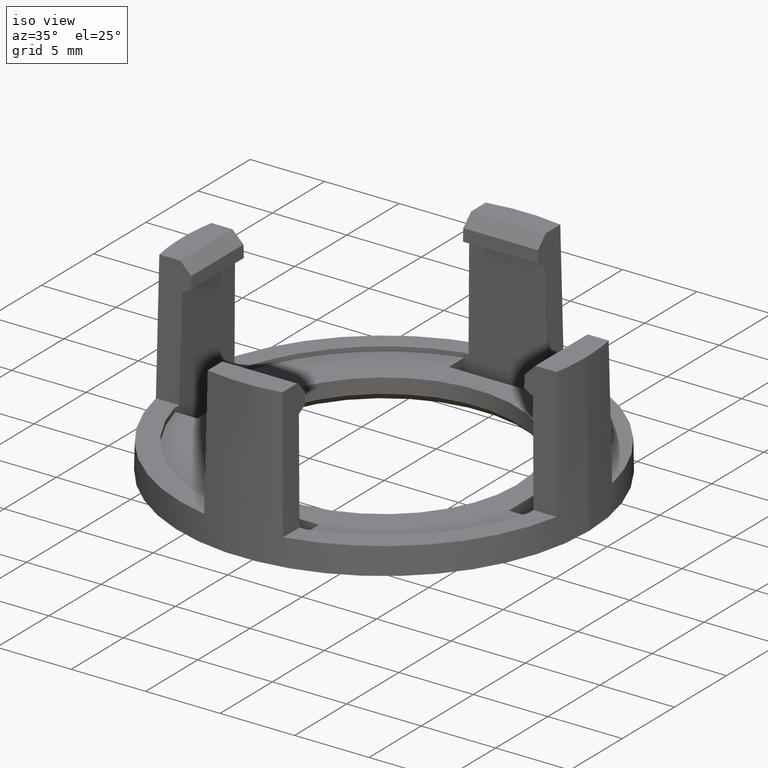
[diagram: clean part render]
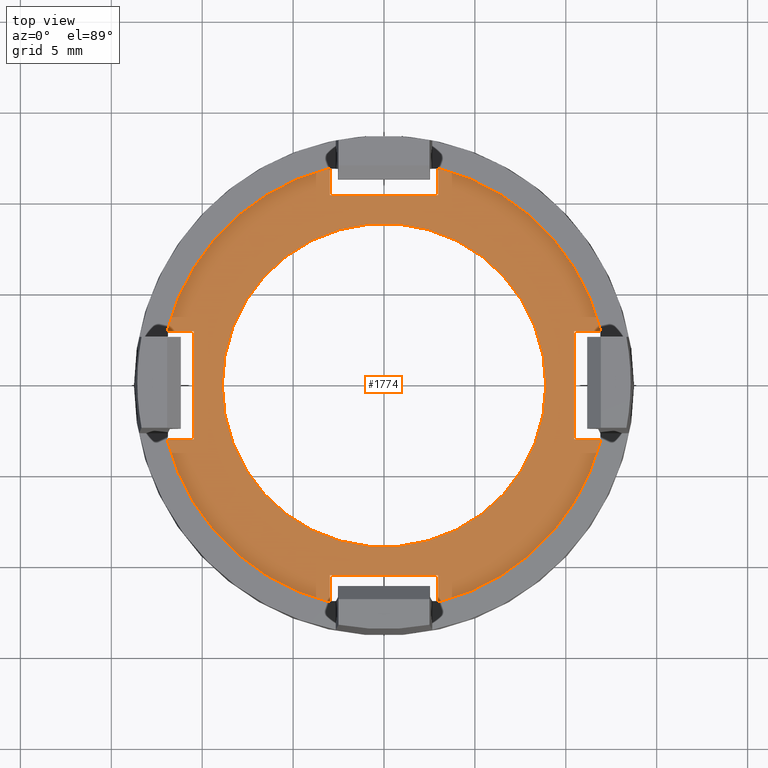
[diagram: tour spotlight — one face highlighted and labeled with its STEP entity id]
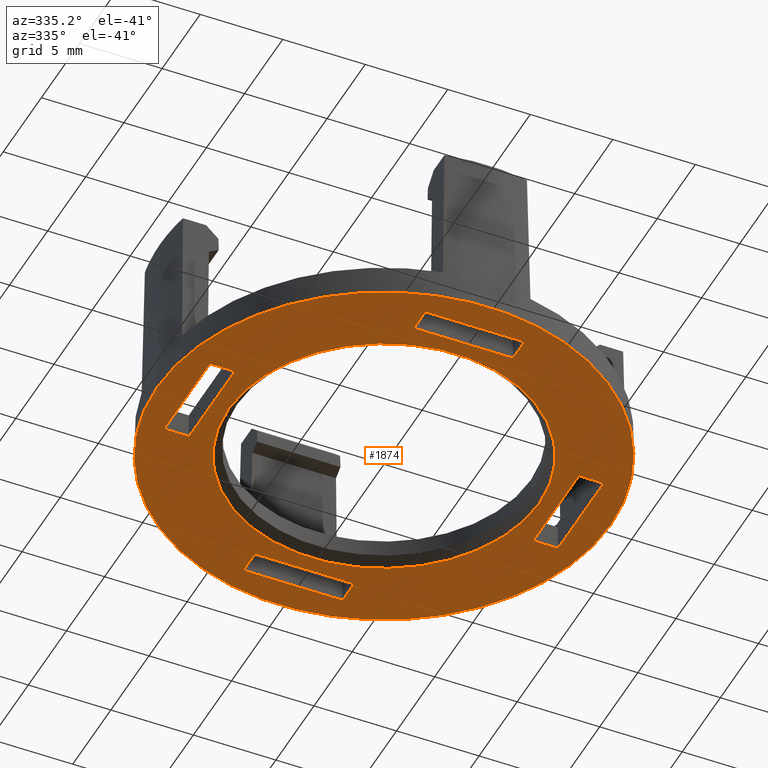
[diagram: tour spotlight — one face highlighted and labeled with its STEP entity id]
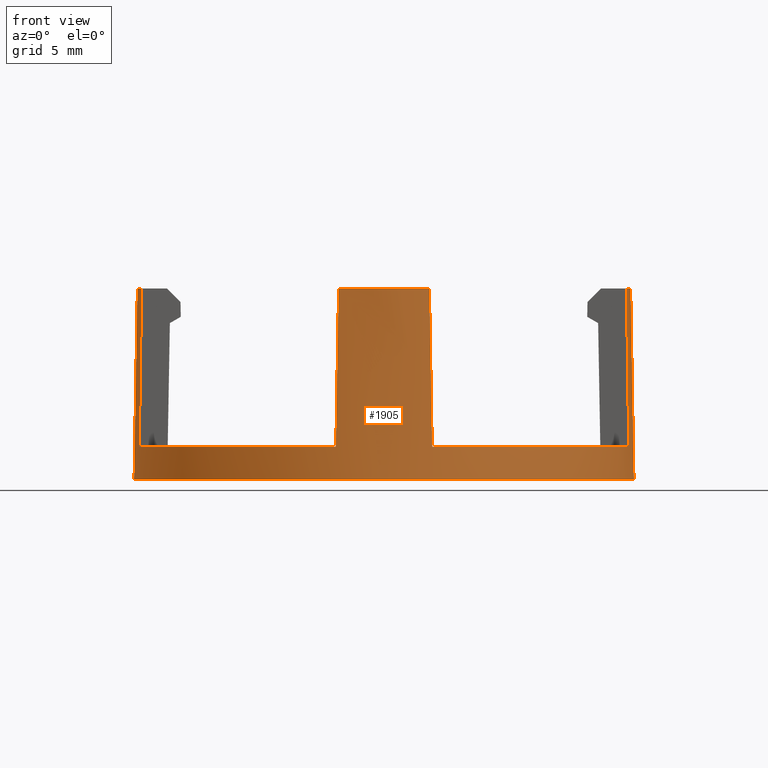
[diagram: tour spotlight — one face highlighted and labeled with its STEP entity id]
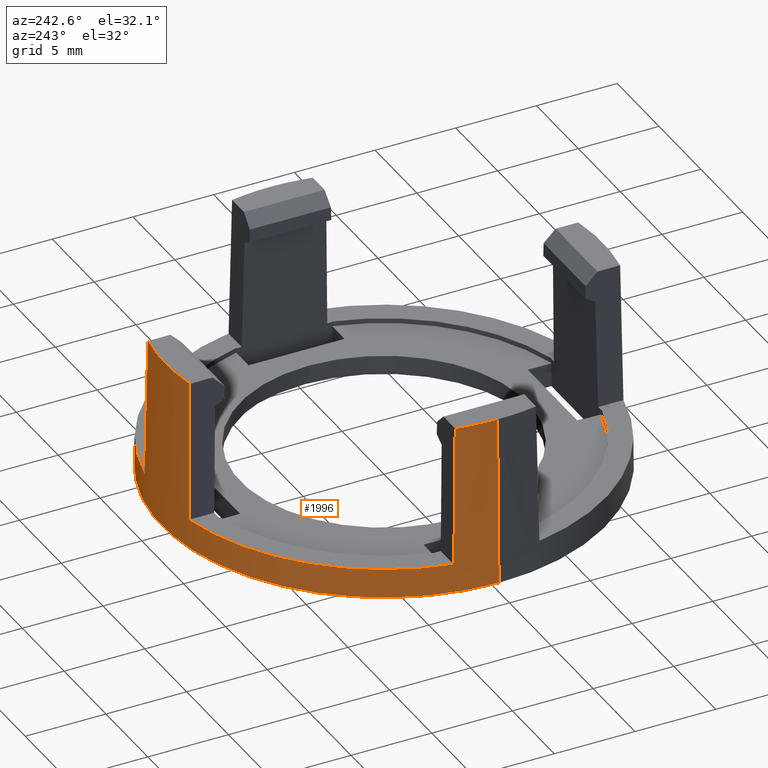
[diagram: tour spotlight — one face highlighted and labeled with its STEP entity id]
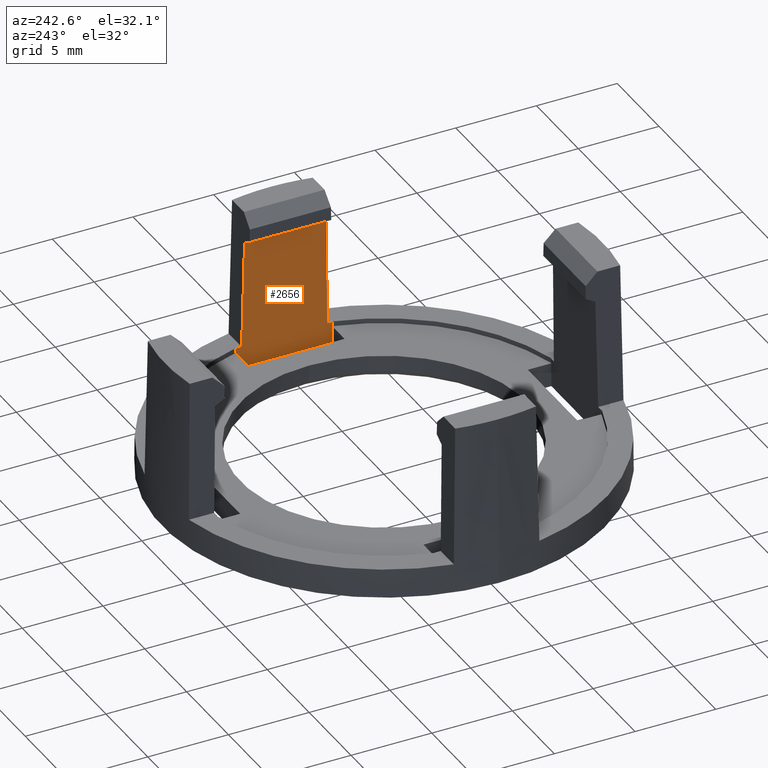
[diagram: tour spotlight — one face highlighted and labeled with its STEP entity id]
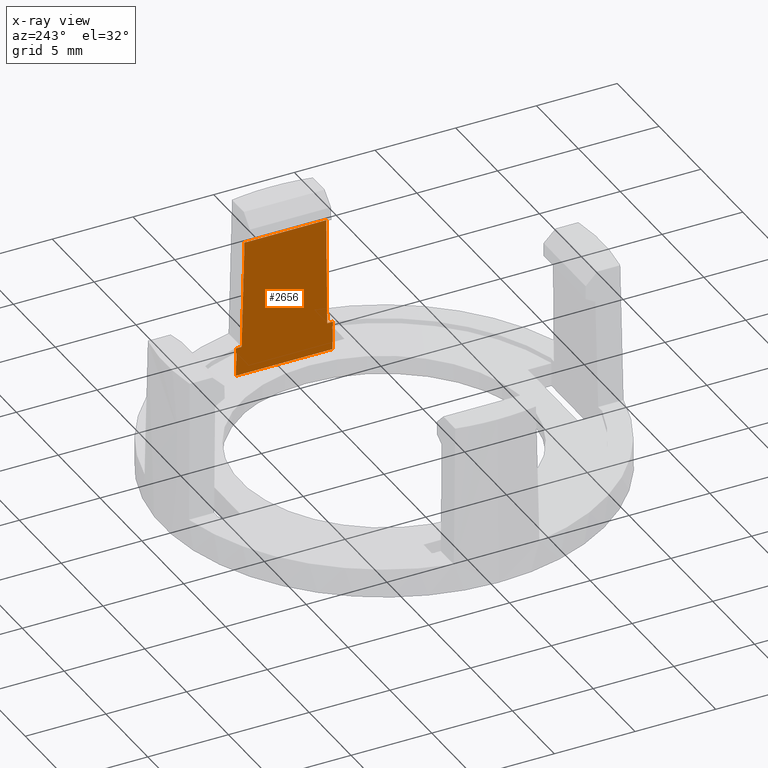
[diagram: x-ray of the same camera — body ghosted, this tour face saturated]
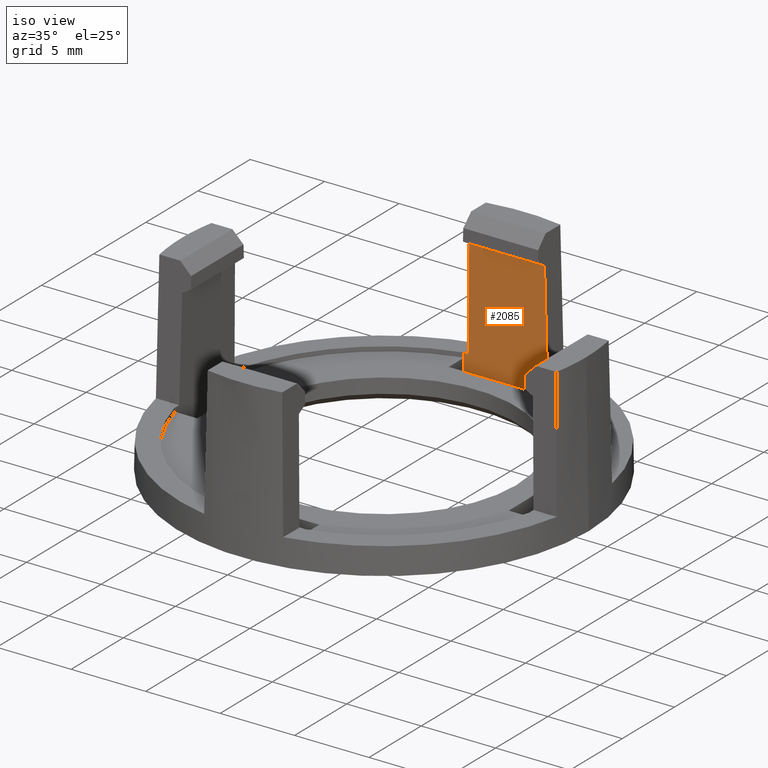
[diagram: tour spotlight — one face highlighted and labeled with its STEP entity id]
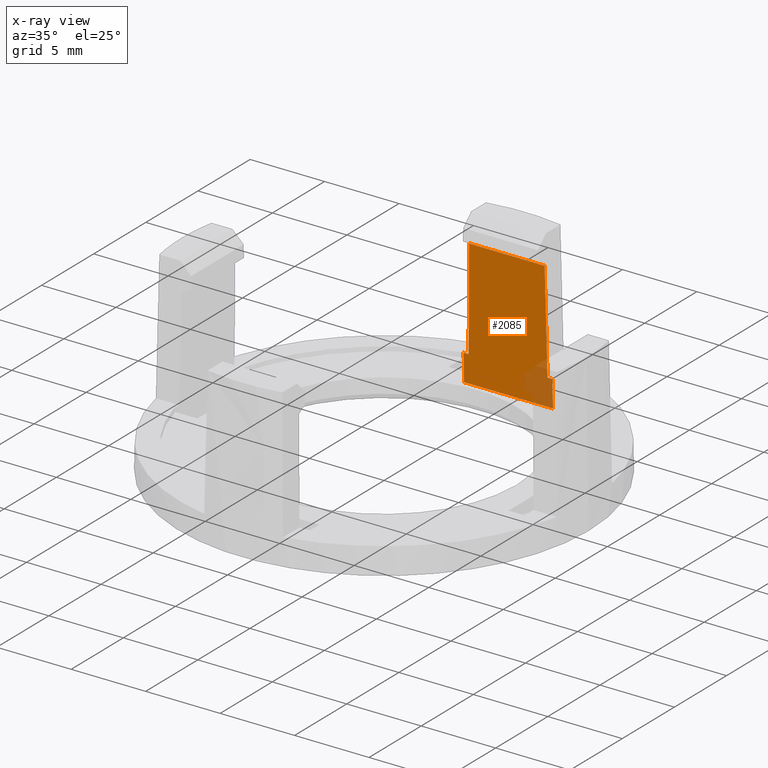
[diagram: x-ray of the same camera — body ghosted, this tour face saturated]
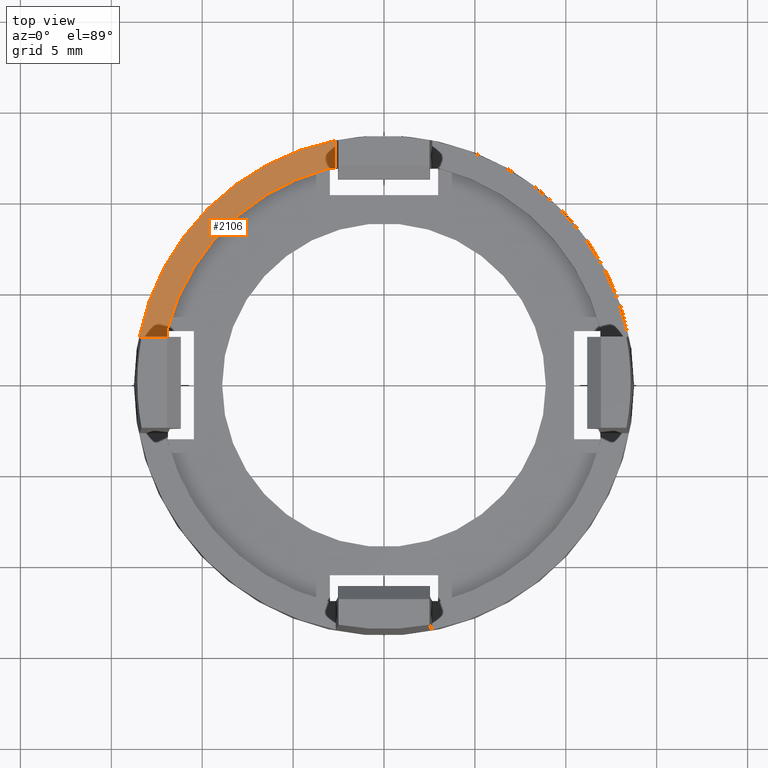
[diagram: tour spotlight — one face highlighted and labeled with its STEP entity id]
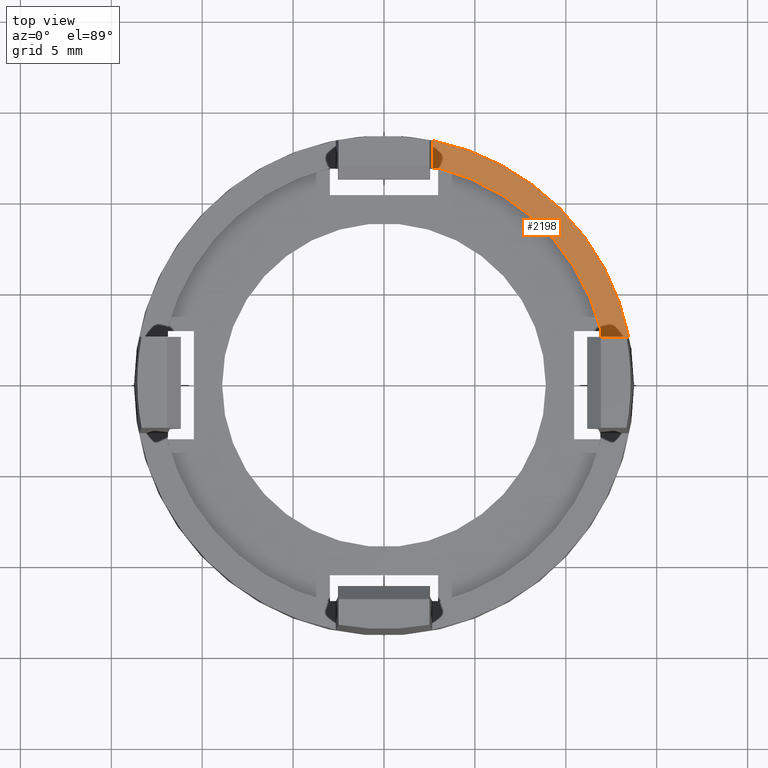
[diagram: tour spotlight — one face highlighted and labeled with its STEP entity id]
A machine part: a face-by-face anatomy tour. The part has 64 B-rep faces; the first image is the clean iso view, then the 8 largest visible faces are spotlighted one at a time (largest first), each with its STEP entity span.

Face 1 — top view, entity #1774. In plain terms, the highlighted planar face has unit normal (0, 0, 1).
Definition (entity closure, byte-faithful):
#15=CARTESIAN_POINT('',(0.E0,0.E0,2.842170943040E-13));
#16=DIRECTION('',(0.E0,0.E0,1.E0));
#17=DIRECTION('',(1.E0,0.E0,0.E0));
#18=AXIS2_PLACEMENT_3D('',#15,#16,#17);
#24=CARTESIAN_POINT('',(0.E0,0.E0,2.842170943040E-13));
#25=DIRECTION('',(0.E0,0.E0,1.E0));
#26=DIRECTION('',(-1.E0,0.E0,0.E0));
#27=AXIS2_PLACEMENT_3D('',#24,#25,#26);
#32=DIRECTION('',(1.696123586196E-14,1.E0,0.E0));
#33=VECTOR('',#32,2.618259739233E-2);
#34=CARTESIAN_POINT('',(3.E0,-1.192853721124E1,0.E0));
#35=LINE('',#34,#33);
#39=DIRECTION('',(0.E0,1.E0,0.E0));
#40=VECTOR('',#39,1.447634805215E0);
#41=CARTESIAN_POINT('',(2.973817402608E0,-1.190235461385E1,0.E0));
#42=LINE('',#41,#40);
#46=DIRECTION('',(-1.E0,0.E0,0.E0));
#47=VECTOR('',#46,5.947634805215E0);
#48=CARTESIAN_POINT('',(2.973817402608E0,-1.045471980863E1,0.E0));
#49=LINE('',#48,#47);
#53=DIRECTION('',(0.E0,1.E0,0.E0));
#54=VECTOR('',#53,1.447634805215E0);
#55=CARTESIAN_POINT('',(-2.973817402608E0,-1.190235461385E1,0.E0));
#56=LINE('',#55,#54);
#60=DIRECTION('',(6.784494344785E-14,1.E0,0.E0));
#61=VECTOR('',#60,2.618259739233E-2);
#62=CARTESIAN_POINT('',(-3.E0,-1.192853721124E1,0.E0));
#63=LINE('',#62,#61);
#67=DIRECTION('',(1.E0,-5.088370758588E-14,-2.814626175668E-14));
#68=VECTOR('',#67,2.618259739233E-2);
#69=CARTESIAN_POINT('',(-1.192853721124E1,-3.E0,0.E0));
#70=LINE('',#69,#68);
#74=DIRECTION('',(1.E0,0.E0,0.E0));
#75=VECTOR('',#74,1.447634805215E0);
#76=CARTESIAN_POINT('',(-1.190235461385E1,-2.973817402608E0,0.E0));
#77=LINE('',#76,#75);
#81=DIRECTION('',(0.E0,1.E0,0.E0));
#82=VECTOR('',#81,5.947634805215E0);
#83=CARTESIAN_POINT('',(-1.045471980863E1,-2.973817402608E0,0.E0));
#84=LINE('',#83,#82);
#88=DIRECTION('',(1.E0,0.E0,0.E0));
#89=VECTOR('',#88,1.447634805215E0);
#90=CARTESIAN_POINT('',(-1.190235461385E1,2.973817402608E0,0.E0));
#91=LINE('',#90,#89);
#95=DIRECTION('',(1.E0,-6.784494344785E-14,-2.814626175669E-14));
#96=VECTOR('',#95,2.618259739233E-2);
#97=CARTESIAN_POINT('',(-1.192853721124E1,3.E0,0.E0));
#98=LINE('',#97,#96);
#102=DIRECTION('',(-5.088370758588E-14,-1.E0,0.E0));
#103=VECTOR('',#102,2.618259739233E-2);
#104=CARTESIAN_POINT('',(-3.E0,1.192853721124E1,0.E0));
#105=LINE('',#104,#103);
#109=DIRECTION('',(0.E0,-1.E0,0.E0));
#110=VECTOR('',#109,1.447634805215E0);
#111=CARTESIAN_POINT('',(-2.973817402608E0,1.190235461385E1,0.E0));
#112=LINE('',#111,#110);
#116=DIRECTION('',(1.E0,0.E0,0.E0));
#117=VECTOR('',#116,5.947634805215E0);
#118=CARTESIAN_POINT('',(-2.973817402608E0,1.045471980863E1,0.E0));
#119=LINE('',#118,#117);
#123=DIRECTION('',(0.E0,-1.E0,0.E0));
#124=VECTOR('',#123,1.447634805215E0);
#125=CARTESIAN_POINT('',(2.973817402608E0,1.190235461385E1,0.E0));
#126=LINE('',#125,#124);
#130=DIRECTION('',(-6.784494344785E-14,-1.E0,0.E0));
#131=VECTOR('',#130,2.618259739233E-2);
#132=CARTESIAN_POINT('',(3.E0,1.192853721124E1,0.E0));
#133=LINE('',#132,#131);
#137=DIRECTION('',(-1.E0,-1.017674151718E-13,2.531938911303E-14));
#138=VECTOR('',#137,2.618259739233E-2);
#139=CARTESIAN_POINT('',(1.192853721124E1,3.E0,0.E0));
#140=LINE('',#139,#138);
#144=DIRECTION('',(-1.E0,0.E0,0.E0));
#145=VECTOR('',#144,1.447634805215E0);
#146=CARTESIAN_POINT('',(1.190235461385E1,2.973817402608E0,0.E0));
#147=LINE('',#146,#145);
#151=DIRECTION('',(0.E0,-1.E0,0.E0));
#152=VECTOR('',#151,5.947634805215E0);
#153=CARTESIAN_POINT('',(1.045471980863E1,2.973817402608E0,0.E0));
#154=LINE('',#153,#152);
#158=DIRECTION('',(-1.E0,0.E0,0.E0));
#159=VECTOR('',#158,1.447634805215E0);
#160=CARTESIAN_POINT('',(1.190235461385E1,-2.973817402608E0,0.E0));
#161=LINE('',#160,#159);
#165=DIRECTION('',(-1.E0,-5.088370758588E-14,2.531938911302E-14));
#166=VECTOR('',#165,2.618259739233E-2);
#167=CARTESIAN_POINT('',(1.192853721124E1,-3.E0,0.E0));
#168=LINE('',#167,#166);
#701=DIRECTION('',(-1.E0,0.E0,0.E0));
#702=VECTOR('',#701,2.618259739233E-2);
#703=CARTESIAN_POINT('',(3.E0,1.190235461385E1,0.E0));
#704=LINE('',#703,#702);
#722=DIRECTION('',(-1.E0,0.E0,0.E0));
#723=VECTOR('',#722,2.618259739233E-2);
#724=CARTESIAN_POINT('',(-2.973817402608E0,1.190235461385E1,0.E0));
#725=LINE('',#724,#723);
#773=CARTESIAN_POINT('',(0.E0,0.E0,-1.136868377216E-13));
#774=DIRECTION('',(0.E0,0.E0,1.E0));
#775=DIRECTION('',(9.697997732718E-1,2.439024390244E-1,0.E0));
#776=AXIS2_PLACEMENT_3D('',#773,#774,#775);
#805=CARTESIAN_POINT('',(0.E0,0.E0,-1.136868377216E-13));
#806=DIRECTION('',(0.E0,0.E0,1.E0));
#807=DIRECTION('',(-2.439024390244E-1,9.697997732718E-1,0.E0));
#808=AXIS2_PLACEMENT_3D('',#805,#806,#807);
#837=CARTESIAN_POINT('',(0.E0,0.E0,-1.136868377216E-13));
#838=DIRECTION('',(0.E0,0.E0,1.E0));
#839=DIRECTION('',(-9.697997732718E-1,-2.439024390244E-1,0.E0));
#840=AXIS2_PLACEMENT_3D('',#837,#838,#839);
#869=CARTESIAN_POINT('',(0.E0,0.E0,-1.136868377216E-13));
#870=DIRECTION('',(0.E0,0.E0,1.E0));
#871=DIRECTION('',(2.439024390244E-1,-9.697997732718E-1,0.E0));
#872=AXIS2_PLACEMENT_3D('',#869,#870,#871);
#1018=DIRECTION('',(1.E0,0.E0,0.E0));
#1019=VECTOR('',#1018,2.618259739233E-2);
#1020=CARTESIAN_POINT('',(-3.E0,-1.190235461385E1,0.E0));
#1021=LINE('',#1020,#1019);
#1039=DIRECTION('',(1.E0,0.E0,0.E0));
#1040=VECTOR('',#1039,2.618259739233E-2);
#1041=CARTESIAN_POINT('',(2.973817402608E0,-1.190235461385E1,0.E0));
#1042=LINE('',#1041,#1040);
#1151=DIRECTION('',(0.E0,-1.E0,0.E0));
#1152=VECTOR('',#1151,2.618259739233E-2);
#1153=CARTESIAN_POINT('',(-1.190235461385E1,3.E0,0.E0));
#1154=LINE('',#1153,#1152);
#1172=DIRECTION('',(0.E0,-1.E0,0.E0));
#1173=VECTOR('',#1172,2.618259739233E-2);
#1174=CARTESIAN_POINT('',(-1.190235461385E1,-2.973817402608E0,0.E0));
#1175=LINE('',#1174,#1173);
#1291=DIRECTION('',(0.E0,1.E0,0.E0));
#1292=VECTOR('',#1291,2.618259739233E-2);
#1293=CARTESIAN_POINT('',(1.190235461385E1,-3.E0,0.E0));
#1294=LINE('',#1293,#1292);
#1312=DIRECTION('',(0.E0,1.E0,0.E0));
#1313=VECTOR('',#1312,2.618259739233E-2);
#1314=CARTESIAN_POINT('',(1.190235461385E1,2.973817402608E0,0.E0));
#1315=LINE('',#1314,#1313);
#1454=CARTESIAN_POINT('',(8.9E0,0.E0,2.858519977809E-13));
#1455=CARTESIAN_POINT('',(-8.9E0,0.E0,2.825821908272E-13));
#1456=VERTEX_POINT('',#1454);
#1457=VERTEX_POINT('',#1455);
#1462=CARTESIAN_POINT('',(1.045471980863E1,2.973817402608E0,0.E0));
#1463=CARTESIAN_POINT('',(1.045471980863E1,-2.973817402608E0,0.E0));
#1464=VERTEX_POINT('',#1462);
#1465=VERTEX_POINT('',#1463);
#1470=CARTESIAN_POINT('',(1.190235461385E1,3.E0,0.E0));
#1472=VERTEX_POINT('',#1470);
#1474=CARTESIAN_POINT('',(1.190235461385E1,-3.E0,0.E0));
#1476=VERTEX_POINT('',#1474);
#1482=CARTESIAN_POINT('',(1.190235461385E1,2.973817402608E0,0.E0));
#1483=VERTEX_POINT('',#1482);
#1484=CARTESIAN_POINT('',(1.190235461385E1,-2.973817402608E0,0.E0));
#1485=VERTEX_POINT('',#1484);
#1486=CARTESIAN_POINT('',(-2.973817402608E0,1.045471980863E1,0.E0));
#1487=CARTESIAN_POINT('',(2.973817402608E0,1.045471980863E1,0.E0));
#1488=VERTEX_POINT('',#1486);
#1489=VERTEX_POINT('',#1487);
#1494=CARTESIAN_POINT('',(3.E0,1.190235461385E1,0.E0));
#1496=VERTEX_POINT('',#1494);
#1498=CARTESIAN_POINT('',(-3.E0,1.190235461385E1,0.E0));
#1500=VERTEX_POINT('',#1498);
#1506=CARTESIAN_POINT('',(-2.973817402608E0,1.190235461385E1,0.E0));
#1507=VERTEX_POINT('',#1506);
#1508=CARTESIAN_POINT('',(2.973817402608E0,1.190235461385E1,0.E0));
#1509=VERTEX_POINT('',#1508);
#1510=CARTESIAN_POINT('',(-1.045471980863E1,-2.973817402608E0,0.E0));
#1511=CARTESIAN_POINT('',(-1.045471980863E1,2.973817402608E0,0.E0));
#1512=VERTEX_POINT('',#1510);
#1513=VERTEX_POINT('',#1511);
#1518=CARTESIAN_POINT('',(-1.190235461385E1,3.E0,0.E0));
#1520=VERTEX_POINT('',#1518);
#1522=CARTESIAN_POINT('',(-1.190235461385E1,-3.E0,0.E0));
#1524=VERTEX_POINT('',#1522);
#1530=CARTESIAN_POINT('',(-1.190235461385E1,-2.973817402608E0,0.E0));
#1531=VERTEX_POINT('',#1530);
#1532=CARTESIAN_POINT('',(-1.190235461385E1,2.973817402608E0,0.E0));
#1533=VERTEX_POINT('',#1532);
#1534=CARTESIAN_POINT('',(2.973817402608E0,-1.045471980863E1,0.E0));
#1535=CARTESIAN_POINT('',(-2.973817402608E0,-1.045471980863E1,0.E0));
#1536=VERTEX_POINT('',#1534);
#1537=VERTEX_POINT('',#1535);
#1542=CARTESIAN_POINT('',(-3.E0,-1.190235461385E1,0.E0));
#1544=VERTEX_POINT('',#1542);
#1546=CARTESIAN_POINT('',(3.E0,-1.190235461385E1,0.E0));
#1548=VERTEX_POINT('',#1546);
#1554=CARTESIAN_POINT('',(2.973817402608E0,-1.190235461385E1,0.E0));
#1555=VERTEX_POINT('',#1554);
#1556=CARTESIAN_POINT('',(-2.973817402608E0,-1.190235461385E1,0.E0));
#1557=VERTEX_POINT('',#1556);
#1661=CARTESIAN_POINT('',(1.192853721124E1,3.E0,-1.114956009845E-13));
#1662=CARTESIAN_POINT('',(3.E0,1.192853721124E1,-1.131357466620E-13));
#1663=VERTEX_POINT('',#1661);
#1664=VERTEX_POINT('',#1662);
#1665=CARTESIAN_POINT('',(-3.E0,1.192853721124E1,-1.142379287812E-13));
#1666=CARTESIAN_POINT('',(-1.192853721124E1,3.E0,-1.158780744588E-13));
#1667=VERTEX_POINT('',#1665);
#1668=VERTEX_POINT('',#1666);
#1669=CARTESIAN_POINT('',(3.E0,-1.192853721124E1,-1.131357466620E-13));
#1670=CARTESIAN_POINT('',(1.192853721124E1,-3.E0,-1.114956009845E-13));
#1671=VERTEX_POINT('',#1669);
#1672=VERTEX_POINT('',#1670);
#1673=CARTESIAN_POINT('',(-1.192853721124E1,-3.E0,-1.158780744588E-13));
#1674=CARTESIAN_POINT('',(-3.E0,-1.192853721124E1,-1.142379287812E-13));
#1675=VERTEX_POINT('',#1673);
#1676=VERTEX_POINT('',#1674);
#1697=CARTESIAN_POINT('',(0.E0,0.E0,0.E0));
#1698=DIRECTION('',(0.E0,0.E0,1.E0));
#1699=DIRECTION('',(-1.E0,0.E0,0.E0));
#1700=AXIS2_PLACEMENT_3D('',#1697,#1698,#1699);
#1701=PLANE('',#1700);
#1703=ORIENTED_EDGE('',*,*,#1702,.T.);
#1705=ORIENTED_EDGE('',*,*,#1704,.F.);
#1707=ORIENTED_EDGE('',*,*,#1706,.T.);
#1709=ORIENTED_EDGE('',*,*,#1708,.T.);
#1711=ORIENTED_EDGE('',*,*,#1710,.F.);
#1713=ORIENTED_EDGE('',*,*,#1712,.F.);
#1715=ORIENTED_EDGE('',*,*,#1714,.F.);
#1717=ORIENTED_EDGE('',*,*,#1716,.F.);
#1719=ORIENTED_EDGE('',*,*,#1718,.T.);
#1721=ORIENTED_EDGE('',*,*,#1720,.F.);
#1723=ORIENTED_EDGE('',*,*,#1722,.T.);
#1725=ORIENTED_EDGE('',*,*,#1724,.T.);
#1727=ORIENTED_EDGE('',*,*,#1726,.F.);
#1729=ORIENTED_EDGE('',*,*,#1728,.F.);
#1731=ORIENTED_EDGE('',*,*,#1730,.F.);
#1733=ORIENTED_EDGE('',*,*,#1732,.F.);
#1735=ORIENTED_EDGE('',*,*,#1734,.T.);
#1737=ORIENTED_EDGE('',*,*,#1736,.F.);
#1739=ORIENTED_EDGE('',*,*,#1738,.T.);
#1741=ORIENTED_EDGE('',*,*,#1740,.T.);
#1743=ORIENTED_EDGE('',*,*,#1742,.F.);
#1745=ORIENTED_EDGE('',*,*,#1744,.F.);
#1747=ORIENTED_EDGE('',*,*,#1746,.F.);
#1749=ORIENTED_EDGE('',*,*,#1748,.F.);
#1751=ORIENTED_EDGE('',*,*,#1750,.T.);
#1753=ORIENTED_EDGE('',*,*,#1752,.F.);
#1755=ORIENTED_EDGE('',*,*,#1754,.T.);
#1757=ORIENTED_EDGE('',*,*,#1756,.T.);
#1759=ORIENTED_EDGE('',*,*,#1758,.F.);
#1761=ORIENTED_EDGE('',*,*,#1760,.F.);
#1763=ORIENTED_EDGE('',*,*,#1762,.F.);
#1765=ORIENTED_EDGE('',*,*,#1764,.F.);
#1766=EDGE_LOOP('',(#1703,#1705,#1707,#1709,#1711,#1713,#1715,#1717,#1719,#1721,
#1723,#1725,#1727,#1729,#1731,#1733,#1735,#1737,#1739,#1741,#1743,#1745,#1747,
#1749,#1751,#1753,#1755,#1757,#1759,#1761,#1763,#1765));
#1767=FACE_OUTER_BOUND('',#1766,.F.);
#1769=ORIENTED_EDGE('',*,*,#1768,.T.);
#1771=ORIENTED_EDGE('',*,*,#1770,.T.);
#1772=EDGE_LOOP('',(#1769,#1771));
#1773=FACE_BOUND('',#1772,.F.);
#1774=ADVANCED_FACE('',(#1767,#1773),#1701,.T.);
#19=CIRCLE('',#18,8.9E0);
#28=CIRCLE('',#27,8.9E0);
#777=CIRCLE('',#776,1.23E1);
#809=CIRCLE('',#808,1.23E1);
#841=CIRCLE('',#840,1.23E1);
#873=CIRCLE('',#872,1.23E1);
#1702=EDGE_CURVE('',#1671,#1548,#35,.T.);
#1704=EDGE_CURVE('',#1555,#1548,#1042,.T.);
#1706=EDGE_CURVE('',#1555,#1536,#42,.T.);
#1708=EDGE_CURVE('',#1536,#1537,#49,.T.);
#1710=EDGE_CURVE('',#1557,#1537,#56,.T.);
#1712=EDGE_CURVE('',#1544,#1557,#1021,.T.);
#1714=EDGE_CURVE('',#1676,#1544,#63,.T.);
#1716=EDGE_CURVE('',#1675,#1676,#841,.T.);
#1718=EDGE_CURVE('',#1675,#1524,#70,.T.);
#1720=EDGE_CURVE('',#1531,#1524,#1175,.T.);
#1722=EDGE_CURVE('',#1531,#1512,#77,.T.);
#1724=EDGE_CURVE('',#1512,#1513,#84,.T.);
#1726=EDGE_CURVE('',#1533,#1513,#91,.T.);
#1728=EDGE_CURVE('',#1520,#1533,#1154,.T.);
#1730=EDGE_CURVE('',#1668,#1520,#98,.T.);
#1732=EDGE_CURVE('',#1667,#1668,#809,.T.);
#1734=EDGE_CURVE('',#1667,#1500,#105,.T.);
#1736=EDGE_CURVE('',#1507,#1500,#725,.T.);
#1738=EDGE_CURVE('',#1507,#1488,#112,.T.);
#1740=EDGE_CURVE('',#1488,#1489,#119,.T.);
#1742=EDGE_CURVE('',#1509,#1489,#126,.T.);
#1744=EDGE_CURVE('',#1496,#1509,#704,.T.);
#1746=EDGE_CURVE('',#1664,#1496,#133,.T.);
#1748=EDGE_CURVE('',#1663,#1664,#777,.T.);
#1750=EDGE_CURVE('',#1663,#1472,#140,.T.);
#1752=EDGE_CURVE('',#1483,#1472,#1315,.T.);
#1754=EDGE_CURVE('',#1483,#1464,#147,.T.);
#1756=EDGE_CURVE('',#1464,#1465,#154,.T.);
#1758=EDGE_CURVE('',#1485,#1465,#161,.T.);
#1760=EDGE_CURVE('',#1476,#1485,#1294,.T.);
#1762=EDGE_CURVE('',#1672,#1476,#168,.T.);
#1764=EDGE_CURVE('',#1671,#1672,#873,.T.);
#1768=EDGE_CURVE('',#1456,#1457,#19,.T.);
#1770=EDGE_CURVE('',#1457,#1456,#28,.T.);

Face 2 — auxiliary view, entity #1874. In plain terms, the highlighted planar face has unit normal (0, 0, 1).
Definition (entity closure, byte-faithful):
#208=CARTESIAN_POINT('',(0.E0,0.E0,-1.499999999999E0));
#209=DIRECTION('',(0.E0,0.E0,-1.E0));
#210=DIRECTION('',(1.E0,0.E0,0.E0));
#211=AXIS2_PLACEMENT_3D('',#208,#209,#210);
#216=CARTESIAN_POINT('',(0.E0,0.E0,-1.499999999999E0));
#217=DIRECTION('',(0.E0,0.E0,1.E0));
#218=DIRECTION('',(1.E0,0.E0,0.E0));
#219=AXIS2_PLACEMENT_3D('',#216,#217,#218);
#224=CARTESIAN_POINT('',(0.E0,0.E0,-1.5E0));
#225=DIRECTION('',(0.E0,0.E0,1.E0));
#226=DIRECTION('',(1.E0,0.E0,0.E0));
#227=AXIS2_PLACEMENT_3D('',#224,#225,#226);
#232=CARTESIAN_POINT('',(0.E0,0.E0,-1.5E0));
#233=DIRECTION('',(0.E0,0.E0,1.E0));
#234=DIRECTION('',(-1.E0,0.E0,0.E0));
#235=AXIS2_PLACEMENT_3D('',#232,#233,#234);
#240=DIRECTION('',(0.E0,1.E0,0.E0));
#241=VECTOR('',#240,6.E0);
#242=CARTESIAN_POINT('',(1.192853721124E1,-3.E0,-1.5E0));
#243=LINE('',#242,#241);
#247=DIRECTION('',(1.E0,0.E0,0.E0));
#248=VECTOR('',#247,1.5E0);
#249=CARTESIAN_POINT('',(1.042853721124E1,-3.E0,-1.5E0));
#250=LINE('',#249,#248);
#254=DIRECTION('',(0.E0,-1.E0,0.E0));
#255=VECTOR('',#254,6.E0);
#256=CARTESIAN_POINT('',(1.042853721124E1,3.E0,-1.5E0));
#257=LINE('',#256,#255);
#261=DIRECTION('',(-1.E0,0.E0,0.E0));
#262=VECTOR('',#261,1.5E0);
#263=CARTESIAN_POINT('',(1.192853721124E1,3.E0,-1.5E0));
#264=LINE('',#263,#262);
#268=DIRECTION('',(-1.E0,0.E0,0.E0));
#269=VECTOR('',#268,6.E0);
#270=CARTESIAN_POINT('',(3.E0,1.192853721124E1,-1.5E0));
#271=LINE('',#270,#269);
#275=DIRECTION('',(0.E0,1.E0,0.E0));
#276=VECTOR('',#275,1.5E0);
#277=CARTESIAN_POINT('',(3.E0,1.042853721124E1,-1.5E0));
#278=LINE('',#277,#276);
#282=DIRECTION('',(1.E0,0.E0,0.E0));
#283=VECTOR('',#282,6.E0);
#284=CARTESIAN_POINT('',(-3.E0,1.042853721124E1,-1.5E0));
#285=LINE('',#284,#283);
#289=DIRECTION('',(0.E0,-1.E0,0.E0));
#290=VECTOR('',#289,1.5E0);
#291=CARTESIAN_POINT('',(-3.E0,1.192853721124E1,-1.5E0));
#292=LINE('',#291,#290);
#296=DIRECTION('',(0.E0,-1.E0,0.E0));
#297=VECTOR('',#296,6.E0);
#298=CARTESIAN_POINT('',(-1.192853721124E1,3.E0,-1.5E0));
#299=LINE('',#298,#297);
#303=DIRECTION('',(-1.E0,0.E0,0.E0));
#304=VECTOR('',#303,1.5E0);
#305=CARTESIAN_POINT('',(-1.042853721124E1,3.E0,-1.5E0));
#306=LINE('',#305,#304);
#310=DIRECTION('',(0.E0,1.E0,0.E0));
#311=VECTOR('',#310,6.E0);
#312=CARTESIAN_POINT('',(-1.042853721124E1,-3.E0,-1.5E0));
#313=LINE('',#312,#311);
#317=DIRECTION('',(1.E0,0.E0,0.E0));
#318=VECTOR('',#317,1.5E0);
#319=CARTESIAN_POINT('',(-1.192853721124E1,-3.E0,-1.5E0));
#320=LINE('',#319,#318);
#324=DIRECTION('',(1.E0,0.E0,0.E0));
#325=VECTOR('',#324,6.E0);
#326=CARTESIAN_POINT('',(-3.E0,-1.192853721124E1,-1.5E0));
#327=LINE('',#326,#325);
#331=DIRECTION('',(0.E0,-1.E0,0.E0));
#332=VECTOR('',#331,1.5E0);
#333=CARTESIAN_POINT('',(-3.E0,-1.042853721124E1,-1.5E0));
#334=LINE('',#333,#332);
#338=DIRECTION('',(-1.E0,0.E0,0.E0));
#339=VECTOR('',#338,6.E0);
#340=CARTESIAN_POINT('',(3.E0,-1.042853721124E1,-1.5E0));
#341=LINE('',#340,#339);
#345=DIRECTION('',(0.E0,1.E0,0.E0));
#346=VECTOR('',#345,1.5E0);
#347=CARTESIAN_POINT('',(3.E0,-1.192853721124E1,-1.5E0));
#348=LINE('',#347,#346);
#1447=CARTESIAN_POINT('',(1.375E1,0.E0,-1.5E0));
#1449=VERTEX_POINT('',#1447);
#1451=CARTESIAN_POINT('',(-1.375E1,0.E0,-1.5E0));
#1453=VERTEX_POINT('',#1451);
#1466=CARTESIAN_POINT('',(1.192853721124E1,-3.E0,-1.5E0));
#1467=CARTESIAN_POINT('',(1.192853721124E1,3.E0,-1.5E0));
#1468=VERTEX_POINT('',#1466);
#1469=VERTEX_POINT('',#1467);
#1478=CARTESIAN_POINT('',(1.042853721124E1,3.E0,-1.5E0));
#1479=VERTEX_POINT('',#1478);
#1480=CARTESIAN_POINT('',(1.042853721124E1,-3.E0,-1.5E0));
#1481=VERTEX_POINT('',#1480);
#1490=CARTESIAN_POINT('',(3.E0,1.192853721124E1,-1.5E0));
#1491=CARTESIAN_POINT('',(-3.E0,1.192853721124E1,-1.5E0));
#1492=VERTEX_POINT('',#1490);
#1493=VERTEX_POINT('',#1491);
#1502=CARTESIAN_POINT('',(-3.E0,1.042853721124E1,-1.5E0));
#1503=VERTEX_POINT('',#1502);
#1504=CARTESIAN_POINT('',(3.E0,1.042853721124E1,-1.5E0));
#1505=VERTEX_POINT('',#1504);
#1514=CARTESIAN_POINT('',(-1.192853721124E1,3.E0,-1.5E0));
#1515=CARTESIAN_POINT('',(-1.192853721124E1,-3.E0,-1.5E0));
#1516=VERTEX_POINT('',#1514);
#1517=VERTEX_POINT('',#1515);
#1526=CARTESIAN_POINT('',(-1.042853721124E1,-3.E0,-1.5E0));
#1527=VERTEX_POINT('',#1526);
#1528=CARTESIAN_POINT('',(-1.042853721124E1,3.E0,-1.5E0));
#1529=VERTEX_POINT('',#1528);
#1538=CARTESIAN_POINT('',(-3.E0,-1.192853721124E1,-1.5E0));
#1539=CARTESIAN_POINT('',(3.E0,-1.192853721124E1,-1.5E0));
#1540=VERTEX_POINT('',#1538);
#1541=VERTEX_POINT('',#1539);
#1550=CARTESIAN_POINT('',(3.E0,-1.042853721124E1,-1.5E0));
#1551=VERTEX_POINT('',#1550);
#1552=CARTESIAN_POINT('',(-3.E0,-1.042853721124E1,-1.5E0));
#1553=VERTEX_POINT('',#1552);
#1693=CARTESIAN_POINT('',(9.417455064928E0,0.E0,-1.5E0));
#1694=CARTESIAN_POINT('',(-9.417455064928E0,0.E0,-1.5E0));
#1695=VERTEX_POINT('',#1693);
#1696=VERTEX_POINT('',#1694);
#1818=CARTESIAN_POINT('',(0.E0,0.E0,-1.5E0));
#1819=DIRECTION('',(0.E0,0.E0,1.E0));
#1820=DIRECTION('',(-1.E0,0.E0,0.E0));
#1821=AXIS2_PLACEMENT_3D('',#1818,#1819,#1820);
#1822=PLANE('',#1821);
#1824=ORIENTED_EDGE('',*,*,#1823,.F.);
#1826=ORIENTED_EDGE('',*,*,#1825,.T.);
#1827=EDGE_LOOP('',(#1824,#1826));
#1828=FACE_OUTER_BOUND('',#1827,.F.);
#1830=ORIENTED_EDGE('',*,*,#1829,.F.);
#1831=ORIENTED_EDGE('',*,*,#1808,.F.);
#1832=EDGE_LOOP('',(#1830,#1831));
#1833=FACE_BOUND('',#1832,.F.);
#1835=ORIENTED_EDGE('',*,*,#1834,.F.);
#1837=ORIENTED_EDGE('',*,*,#1836,.F.);
#1839=ORIENTED_EDGE('',*,*,#1838,.F.);
#1841=ORIENTED_EDGE('',*,*,#1840,.F.);
#1842=EDGE_LOOP('',(#1835,#1837,#1839,#1841));
#1843=FACE_BOUND('',#1842,.F.);
#1845=ORIENTED_EDGE('',*,*,#1844,.F.);
#1847=ORIENTED_EDGE('',*,*,#1846,.F.);
#1849=ORIENTED_EDGE('',*,*,#1848,.F.);
#1851=ORIENTED_EDGE('',*,*,#1850,.F.);
#1852=EDGE_LOOP('',(#1845,#1847,#1849,#1851));
#1853=FACE_BOUND('',#1852,.F.);
#1855=ORIENTED_EDGE('',*,*,#1854,.F.);
#1857=ORIENTED_EDGE('',*,*,#1856,.F.);
#1859=ORIENTED_EDGE('',*,*,#1858,.F.);
#1861=ORIENTED_EDGE('',*,*,#1860,.F.);
#1862=EDGE_LOOP('',(#1855,#1857,#1859,#1861));
#1863=FACE_BOUND('',#1862,.F.);
#1865=ORIENTED_EDGE('',*,*,#1864,.F.);
#1867=ORIENTED_EDGE('',*,*,#1866,.F.);
#1869=ORIENTED_EDGE('',*,*,#1868,.F.);
#1871=ORIENTED_EDGE('',*,*,#1870,.F.);
#1872=EDGE_LOOP('',(#1865,#1867,#1869,#1871));
#1873=FACE_BOUND('',#1872,.F.);
#1874=ADVANCED_FACE('',(#1828,#1833,#1843,#1853,#1863,#1873),#1822,.F.);
#212=CIRCLE('',#211,1.375E1);
#220=CIRCLE('',#219,1.375E1);
#228=CIRCLE('',#227,9.417455064928E0);
#236=CIRCLE('',#235,9.417455064928E0);
#1808=EDGE_CURVE('',#1696,#1695,#236,.T.);
#1823=EDGE_CURVE('',#1449,#1453,#212,.T.);
#1825=EDGE_CURVE('',#1449,#1453,#220,.T.);
#1829=EDGE_CURVE('',#1695,#1696,#228,.T.);
#1834=EDGE_CURVE('',#1468,#1469,#243,.T.);
#1836=EDGE_CURVE('',#1481,#1468,#250,.T.);
#1838=EDGE_CURVE('',#1479,#1481,#257,.T.);
#1840=EDGE_CURVE('',#1469,#1479,#264,.T.);
#1844=EDGE_CURVE('',#1492,#1493,#271,.T.);
#1846=EDGE_CURVE('',#1505,#1492,#278,.T.);
#1848=EDGE_CURVE('',#1503,#1505,#285,.T.);
#1850=EDGE_CURVE('',#1493,#1503,#292,.T.);
#1854=EDGE_CURVE('',#1516,#1517,#299,.T.);
#1856=EDGE_CURVE('',#1529,#1516,#306,.T.);
#1858=EDGE_CURVE('',#1527,#1529,#313,.T.);
#1860=EDGE_CURVE('',#1517,#1527,#320,.T.);
#1864=EDGE_CURVE('',#1540,#1541,#327,.T.);
#1866=EDGE_CURVE('',#1553,#1540,#334,.T.);
#1868=EDGE_CURVE('',#1551,#1553,#341,.T.);
#1870=EDGE_CURVE('',#1541,#1551,#348,.T.);

Face 3 — front view, entity #1905. In plain terms, the highlighted conical surface has half-angle 1 deg.
Definition (entity closure, byte-faithful):
#208=CARTESIAN_POINT('',(0.E0,0.E0,-1.499999999999E0));
#209=DIRECTION('',(0.E0,0.E0,-1.E0));
#210=DIRECTION('',(1.E0,0.E0,0.E0));
#211=AXIS2_PLACEMENT_3D('',#208,#209,#210);
#352=CARTESIAN_POINT('',(0.E0,0.E0,9.E0));
#353=DIRECTION('',(0.E0,0.E0,-1.E0));
#354=DIRECTION('',(1.842744351577E-1,-9.828748305595E-1,0.E0));
#355=AXIS2_PLACEMENT_3D('',#352,#353,#354);
#360=CARTESIAN_POINT('',(2.651859064875E0,-1.345983302077E1,3.E-1));
#361=CARTESIAN_POINT('',(2.634837805454E0,-1.344583808170E1,1.275147299137E0));
#362=CARTESIAN_POINT('',(2.600893973361E0,-1.341788568991E1,3.219788137396E0));
#363=CARTESIAN_POINT('',(2.550274285142E0,-1.337607061854E1,6.119788133186E0));
#364=CARTESIAN_POINT('',(2.516725199548E0,-1.334827029373E1,8.041813959637E0));
#365=CARTESIAN_POINT('',(2.5E0,-1.333438940836E1,9.E0));
#370=CARTESIAN_POINT('',(0.E0,0.E0,3.000000000001E-1));
#371=DIRECTION('',(0.E0,0.E0,1.E0));
#372=DIRECTION('',(1.933041826605E-1,-9.811388754738E-1,0.E0));
#373=AXIS2_PLACEMENT_3D('',#370,#371,#372);
#378=CARTESIAN_POINT('',(1.345983302077E1,-2.651859064875E0,3.E-1));
#379=CARTESIAN_POINT('',(1.344583808171E1,-2.634837805463E0,1.275147298670E0));
#380=CARTESIAN_POINT('',(1.341788568992E1,-2.600893973380E0,3.219788136307E0));
#381=CARTESIAN_POINT('',(1.337607061855E1,-2.550274285161E0,6.119788132097E0));
#382=CARTESIAN_POINT('',(1.334827029373E1,-2.516725199556E0,8.041813959170E0));
#383=CARTESIAN_POINT('',(1.333438940836E1,-2.5E0,9.E0));
#388=CARTESIAN_POINT('',(0.E0,0.E0,9.E0));
#389=DIRECTION('',(0.E0,0.E0,-1.E0));
#390=DIRECTION('',(1.E0,0.E0,0.E0));
#391=AXIS2_PLACEMENT_3D('',#388,#389,#390);
#396=DIRECTION('',(1.745240643728E-2,0.E0,-9.998476951564E-1));
#397=VECTOR('',#396,1.050159944446E1);
#398=CARTESIAN_POINT('',(1.356672181825E1,0.E0,9.E0));
#399=LINE('',#398,#397);
#403=DIRECTION('',(-1.745240643728E-2,0.E0,-9.998476951564E-1));
#404=VECTOR('',#403,1.050159944446E1);
#405=CARTESIAN_POINT('',(-1.356672181825E1,0.E0,9.E0));
#406=LINE('',#405,#404);
#410=CARTESIAN_POINT('',(0.E0,0.E0,9.E0));
#411=DIRECTION('',(0.E0,0.E0,-1.E0));
#412=DIRECTION('',(-9.828748305595E-1,-1.842744351577E-1,0.E0));
#413=AXIS2_PLACEMENT_3D('',#410,#411,#412);
#418=CARTESIAN_POINT('',(-1.345983302077E1,-2.651859064875E0,3.E-1));
#419=CARTESIAN_POINT('',(-1.344583808170E1,-2.634837805454E0,1.275147299137E0));
#420=CARTESIAN_POINT('',(-1.341788568991E1,-2.600893973361E0,3.219788137396E0));
#421=CARTESIAN_POINT('',(-1.337607061854E1,-2.550274285142E0,6.119788133186E0));
#422=CARTESIAN_POINT('',(-1.334827029373E1,-2.516725199548E0,8.041813959637E0));
#423=CARTESIAN_POINT('',(-1.333438940836E1,-2.5E0,9.E0));
#428=CARTESIAN_POINT('',(0.E0,0.E0,3.000000000001E-1));
#429=DIRECTION('',(0.E0,0.E0,1.E0));
#430=DIRECTION('',(-9.811388754738E-1,-1.933041826605E-1,0.E0));
#431=AXIS2_PLACEMENT_3D('',#428,#429,#430);
#436=CARTESIAN_POINT('',(-2.651859064875E0,-1.345983302077E1,3.E-1));
#437=CARTESIAN_POINT('',(-2.634837805463E0,-1.344583808171E1,1.275147298670E0));
#438=CARTESIAN_POINT('',(-2.600893973380E0,-1.341788568992E1,3.219788136307E0));
#439=CARTESIAN_POINT('',(-2.550274285161E0,-1.337607061855E1,6.119788132097E0));
#440=CARTESIAN_POINT('',(-2.516725199556E0,-1.334827029373E1,8.041813959170E0));
#441=CARTESIAN_POINT('',(-2.5E0,-1.333438940836E1,9.E0));
#1446=CARTESIAN_POINT('',(1.356672181825E1,0.E0,9.E0));
#1447=CARTESIAN_POINT('',(1.375E1,0.E0,-1.5E0));
#1448=VERTEX_POINT('',#1446);
#1449=VERTEX_POINT('',#1447);
#1450=CARTESIAN_POINT('',(-1.356672181825E1,0.E0,9.E0));
#1451=CARTESIAN_POINT('',(-1.375E1,0.E0,-1.5E0));
#1452=VERTEX_POINT('',#1450);
#1453=VERTEX_POINT('',#1451);
#1578=CARTESIAN_POINT('',(1.333438940836E1,-2.5E0,9.E0));
#1579=VERTEX_POINT('',#1578);
#1582=CARTESIAN_POINT('',(1.345983302077E1,-2.651859064875E0,3.E-1));
#1583=VERTEX_POINT('',#1582);
#1643=VERTEX_POINT('',#436);
#1644=VERTEX_POINT('',#441);
#1649=CARTESIAN_POINT('',(-1.333438940836E1,-2.5E0,9.E0));
#1650=VERTEX_POINT('',#1649);
#1651=VERTEX_POINT('',#418);
#1656=CARTESIAN_POINT('',(2.651859064875E0,-1.345983302077E1,
3.000000000001E-1));
#1657=VERTEX_POINT('',#1656);
#1658=VERTEX_POINT('',#365);
#1875=CARTESIAN_POINT('',(0.E0,0.E0,3.75E0));
#1876=DIRECTION('',(0.E0,0.E0,-1.E0));
#1877=DIRECTION('',(1.E0,0.E0,0.E0));
#1878=AXIS2_PLACEMENT_3D('',#1875,#1876,#1877);
#1879=CONICAL_SURFACE('',#1878,1.365836090913E1,1.E0);
#1881=ORIENTED_EDGE('',*,*,#1880,.F.);
#1883=ORIENTED_EDGE('',*,*,#1882,.F.);
#1885=ORIENTED_EDGE('',*,*,#1884,.T.);
#1887=ORIENTED_EDGE('',*,*,#1886,.T.);
#1889=ORIENTED_EDGE('',*,*,#1888,.F.);
#1891=ORIENTED_EDGE('',*,*,#1890,.T.);
#1892=ORIENTED_EDGE('',*,*,#1823,.T.);
#1894=ORIENTED_EDGE('',*,*,#1893,.F.);
#1896=ORIENTED_EDGE('',*,*,#1895,.F.);
#1898=ORIENTED_EDGE('',*,*,#1897,.F.);
#1900=ORIENTED_EDGE('',*,*,#1899,.T.);
#1902=ORIENTED_EDGE('',*,*,#1901,.T.);
#1903=EDGE_LOOP('',(#1881,#1883,#1885,#1887,#1889,#1891,#1892,#1894,#1896,#1898,
#1900,#1902));
#1904=FACE_OUTER_BOUND('',#1903,.F.);
#1905=ADVANCED_FACE('',(#1904),#1879,.T.);
#212=CIRCLE('',#211,1.375E1);
#356=CIRCLE('',#355,1.356672181825E1);
#366=B_SPLINE_CURVE_WITH_KNOTS('',3,(#360,#361,#362,#363,#364,#365),
.UNSPECIFIED.,.F.,.F.,(4,1,1,4),(0.E0,3.333333333333E-1,6.666666666667E-1,1.E0),
.UNSPECIFIED.);
#374=CIRCLE('',#373,1.371858088313E1);
#384=B_SPLINE_CURVE_WITH_KNOTS('',3,(#378,#379,#380,#381,#382,#383),
.UNSPECIFIED.,.F.,.F.,(4,1,1,4),(0.E0,3.333333333333E-1,6.666666666667E-1,1.E0),
.UNSPECIFIED.);
#392=CIRCLE('',#391,1.356672181825E1);
#414=CIRCLE('',#413,1.356672181825E1);
#424=B_SPLINE_CURVE_WITH_KNOTS('',3,(#418,#419,#420,#421,#422,#423),
.UNSPECIFIED.,.F.,.F.,(4,1,1,4),(0.E0,3.333333333333E-1,6.666666666667E-1,1.E0),
.UNSPECIFIED.);
#432=CIRCLE('',#431,1.371858088313E1);
#442=B_SPLINE_CURVE_WITH_KNOTS('',3,(#436,#437,#438,#439,#440,#441),
.UNSPECIFIED.,.F.,.F.,(4,1,1,4),(0.E0,3.333333333333E-1,6.666666666667E-1,1.E0),
.UNSPECIFIED.);
#1823=EDGE_CURVE('',#1449,#1453,#212,.T.);
#1880=EDGE_CURVE('',#1658,#1644,#356,.T.);
#1882=EDGE_CURVE('',#1657,#1658,#366,.T.);
#1884=EDGE_CURVE('',#1657,#1583,#374,.T.);
#1886=EDGE_CURVE('',#1583,#1579,#384,.T.);
#1888=EDGE_CURVE('',#1448,#1579,#392,.T.);
#1890=EDGE_CURVE('',#1448,#1449,#399,.T.);
#1893=EDGE_CURVE('',#1452,#1453,#406,.T.);
#1895=EDGE_CURVE('',#1650,#1452,#414,.T.);
#1897=EDGE_CURVE('',#1651,#1650,#424,.T.);
#1899=EDGE_CURVE('',#1651,#1643,#432,.T.);
#1901=EDGE_CURVE('',#1643,#1644,#442,.T.);

Face 4 — auxiliary view, entity #1996. In plain terms, the highlighted conical surface has half-angle 1 deg.
Definition (entity closure, byte-faithful):
#216=CARTESIAN_POINT('',(0.E0,0.E0,-1.499999999999E0));
#217=DIRECTION('',(0.E0,0.E0,1.E0));
#218=DIRECTION('',(1.E0,0.E0,0.E0));
#219=AXIS2_PLACEMENT_3D('',#216,#217,#218);
#396=DIRECTION('',(1.745240643728E-2,0.E0,-9.998476951564E-1));
#397=VECTOR('',#396,1.050159944446E1);
#398=CARTESIAN_POINT('',(1.356672181825E1,0.E0,9.E0));
#399=LINE('',#398,#397);
#403=DIRECTION('',(-1.745240643728E-2,0.E0,-9.998476951564E-1));
#404=VECTOR('',#403,1.050159944446E1);
#405=CARTESIAN_POINT('',(-1.356672181825E1,0.E0,9.E0));
#406=LINE('',#405,#404);
#530=CARTESIAN_POINT('',(0.E0,0.E0,9.E0));
#531=DIRECTION('',(0.E0,0.E0,1.E0));
#532=DIRECTION('',(1.842744351577E-1,9.828748305595E-1,0.E0));
#533=AXIS2_PLACEMENT_3D('',#530,#531,#532);
#538=CARTESIAN_POINT('',(-2.651859064875E0,1.345983302077E1,3.E-1));
#539=CARTESIAN_POINT('',(-2.634837805454E0,1.344583808170E1,1.275147299137E0));
#540=CARTESIAN_POINT('',(-2.600893973361E0,1.341788568991E1,3.219788137396E0));
#541=CARTESIAN_POINT('',(-2.550274285142E0,1.337607061854E1,6.119788133186E0));
#542=CARTESIAN_POINT('',(-2.516725199548E0,1.334827029373E1,8.041813959637E0));
#543=CARTESIAN_POINT('',(-2.5E0,1.333438940836E1,9.E0));
#548=CARTESIAN_POINT('',(0.E0,0.E0,3.000000000001E-1));
#549=DIRECTION('',(0.E0,0.E0,1.E0));
#550=DIRECTION('',(-1.933041826605E-1,9.811388754738E-1,0.E0));
#551=AXIS2_PLACEMENT_3D('',#548,#549,#550);
#556=CARTESIAN_POINT('',(-1.345983302077E1,2.651859064875E0,3.E-1));
#557=CARTESIAN_POINT('',(-1.344583808171E1,2.634837805463E0,1.275147298670E0));
#558=CARTESIAN_POINT('',(-1.341788568992E1,2.600893973380E0,3.219788136307E0));
#559=CARTESIAN_POINT('',(-1.337607061855E1,2.550274285161E0,6.119788132097E0));
#560=CARTESIAN_POINT('',(-1.334827029373E1,2.516725199556E0,8.041813959170E0));
#561=CARTESIAN_POINT('',(-1.333438940836E1,2.5E0,9.E0));
#566=CARTESIAN_POINT('',(0.E0,0.E0,9.E0));
#567=DIRECTION('',(0.E0,0.E0,1.E0));
#568=DIRECTION('',(-9.828748305595E-1,1.842744351577E-1,0.E0));
#569=AXIS2_PLACEMENT_3D('',#566,#567,#568);
#574=CARTESIAN_POINT('',(0.E0,0.E0,9.E0));
#575=DIRECTION('',(0.E0,0.E0,1.E0));
#576=DIRECTION('',(1.E0,0.E0,0.E0));
#577=AXIS2_PLACEMENT_3D('',#574,#575,#576);
#582=CARTESIAN_POINT('',(1.345983302077E1,2.651859064875E0,3.E-1));
#583=CARTESIAN_POINT('',(1.344583808170E1,2.634837805454E0,1.275147299137E0));
#584=CARTESIAN_POINT('',(1.341788568991E1,2.600893973361E0,3.219788137396E0));
#585=CARTESIAN_POINT('',(1.337607061854E1,2.550274285142E0,6.119788133186E0));
#586=CARTESIAN_POINT('',(1.334827029373E1,2.516725199548E0,8.041813959637E0));
#587=CARTESIAN_POINT('',(1.333438940836E1,2.5E0,9.E0));
#592=CARTESIAN_POINT('',(0.E0,0.E0,3.000000000001E-1));
#593=DIRECTION('',(0.E0,0.E0,1.E0));
#594=DIRECTION('',(9.811388754738E-1,1.933041826605E-1,0.E0));
#595=AXIS2_PLACEMENT_3D('',#592,#593,#594);
#600=CARTESIAN_POINT('',(2.651859064875E0,1.345983302077E1,3.E-1));
#601=CARTESIAN_POINT('',(2.634837805463E0,1.344583808171E1,1.275147298670E0));
#602=CARTESIAN_POINT('',(2.600893973380E0,1.341788568992E1,3.219788136307E0));
#603=CARTESIAN_POINT('',(2.550274285161E0,1.337607061855E1,6.119788132097E0));
#604=CARTESIAN_POINT('',(2.516725199556E0,1.334827029373E1,8.041813959170E0));
#605=CARTESIAN_POINT('',(2.5E0,1.333438940836E1,9.E0));
#1446=CARTESIAN_POINT('',(1.356672181825E1,0.E0,9.E0));
#1447=CARTESIAN_POINT('',(1.375E1,0.E0,-1.5E0));
#1448=VERTEX_POINT('',#1446);
#1449=VERTEX_POINT('',#1447);
#1450=CARTESIAN_POINT('',(-1.356672181825E1,0.E0,9.E0));
#1451=CARTESIAN_POINT('',(-1.375E1,0.E0,-1.5E0));
#1452=VERTEX_POINT('',#1450);
#1453=VERTEX_POINT('',#1451);
#1572=CARTESIAN_POINT('',(1.333438940836E1,2.5E0,9.E0));
#1573=VERTEX_POINT('',#1572);
#1584=CARTESIAN_POINT('',(1.345983302077E1,2.651859064875E0,3.E-1));
#1585=VERTEX_POINT('',#1584);
#1624=VERTEX_POINT('',#600);
#1625=VERTEX_POINT('',#605);
#1630=CARTESIAN_POINT('',(-1.333438940836E1,2.5E0,9.E0));
#1631=VERTEX_POINT('',#1630);
#1632=VERTEX_POINT('',#556);
#1637=VERTEX_POINT('',#538);
#1638=VERTEX_POINT('',#543);
#1971=CARTESIAN_POINT('',(0.E0,0.E0,3.75E0));
#1972=DIRECTION('',(0.E0,0.E0,-1.E0));
#1973=DIRECTION('',(1.E0,0.E0,0.E0));
#1974=AXIS2_PLACEMENT_3D('',#1971,#1972,#1973);
#1975=CONICAL_SURFACE('',#1974,1.365836090913E1,1.E0);
#1976=ORIENTED_EDGE('',*,*,#1911,.T.);
#1978=ORIENTED_EDGE('',*,*,#1977,.F.);
#1980=ORIENTED_EDGE('',*,*,#1979,.T.);
#1982=ORIENTED_EDGE('',*,*,#1981,.T.);
#1983=ORIENTED_EDGE('',*,*,#1928,.T.);
#1984=ORIENTED_EDGE('',*,*,#1893,.T.);
#1985=ORIENTED_EDGE('',*,*,#1825,.F.);
#1986=ORIENTED_EDGE('',*,*,#1890,.F.);
#1987=ORIENTED_EDGE('',*,*,#1948,.T.);
#1989=ORIENTED_EDGE('',*,*,#1988,.F.);
#1991=ORIENTED_EDGE('',*,*,#1990,.T.);
#1993=ORIENTED_EDGE('',*,*,#1992,.T.);
#1994=EDGE_LOOP('',(#1976,#1978,#1980,#1982,#1983,#1984,#1985,#1986,#1987,#1989,
#1991,#1993));
#1995=FACE_OUTER_BOUND('',#1994,.F.);
#1996=ADVANCED_FACE('',(#1995),#1975,.T.);
#220=CIRCLE('',#219,1.375E1);
#534=CIRCLE('',#533,1.356672181825E1);
#544=B_SPLINE_CURVE_WITH_KNOTS('',3,(#538,#539,#540,#541,#542,#543),
.UNSPECIFIED.,.F.,.F.,(4,1,1,4),(0.E0,3.333333333333E-1,6.666666666667E-1,1.E0),
.UNSPECIFIED.);
#552=CIRCLE('',#551,1.371858088313E1);
#562=B_SPLINE_CURVE_WITH_KNOTS('',3,(#556,#557,#558,#559,#560,#561),
.UNSPECIFIED.,.F.,.F.,(4,1,1,4),(0.E0,3.333333333333E-1,6.666666666667E-1,1.E0),
.UNSPECIFIED.);
#570=CIRCLE('',#569,1.356672181825E1);
#578=CIRCLE('',#577,1.356672181825E1);
#588=B_SPLINE_CURVE_WITH_KNOTS('',3,(#582,#583,#584,#585,#586,#587),
.UNSPECIFIED.,.F.,.F.,(4,1,1,4),(0.E0,3.333333333333E-1,6.666666666667E-1,1.E0),
.UNSPECIFIED.);
#596=CIRCLE('',#595,1.371858088313E1);
#606=B_SPLINE_CURVE_WITH_KNOTS('',3,(#600,#601,#602,#603,#604,#605),
.UNSPECIFIED.,.F.,.F.,(4,1,1,4),(0.E0,3.333333333333E-1,6.666666666667E-1,1.E0),
.UNSPECIFIED.);
#1825=EDGE_CURVE('',#1449,#1453,#220,.T.);
#1890=EDGE_CURVE('',#1448,#1449,#399,.T.);
#1893=EDGE_CURVE('',#1452,#1453,#406,.T.);
#1911=EDGE_CURVE('',#1625,#1638,#534,.T.);
#1928=EDGE_CURVE('',#1631,#1452,#570,.T.);
#1948=EDGE_CURVE('',#1448,#1573,#578,.T.);
#1977=EDGE_CURVE('',#1637,#1638,#544,.T.);
#1979=EDGE_CURVE('',#1637,#1632,#552,.T.);
#1981=EDGE_CURVE('',#1632,#1631,#562,.T.);
#1988=EDGE_CURVE('',#1585,#1573,#588,.T.);
#1990=EDGE_CURVE('',#1585,#1624,#596,.T.);
#1992=EDGE_CURVE('',#1624,#1625,#606,.T.);

Face 5 — auxiliary view, entity #2656. An x-ray twin of the same camera follows (body ghosted, this face saturated) — the face is partly hidden behind the body. In plain terms, the highlighted planar face has unit normal (-0.9998, 0, -0.0175).
Definition (entity closure, byte-faithful):
#240=DIRECTION('',(0.E0,1.E0,0.E0));
#241=VECTOR('',#240,6.E0);
#242=CARTESIAN_POINT('',(1.192853721124E1,-3.E0,-1.5E0));
#243=LINE('',#242,#241);
#1263=DIRECTION('',(-1.745240643728E-2,0.E0,9.998476951564E-1));
#1264=VECTOR('',#1263,3.000456984132E-1);
#1265=CARTESIAN_POINT('',(1.190235461385E1,-3.E0,0.E0));
#1266=LINE('',#1265,#1264);
#1277=DIRECTION('',(1.744974916068E-2,-1.744974916068E-2,-9.996954598819E-1));
#1278=VECTOR('',#1277,6.802071503659E0);
#1279=CARTESIAN_POINT('',(1.177842365286E1,-2.533164623364E0,7.1E0));
#1280=LINE('',#1279,#1278);
#1284=DIRECTION('',(0.E0,1.E0,0.E0));
#1285=VECTOR('',#1284,3.481409351245E-1);
#1286=CARTESIAN_POINT('',(1.189711809437E1,-3.E0,3.E-1));
#1287=LINE('',#1286,#1285);
#1291=DIRECTION('',(0.E0,1.E0,0.E0));
#1292=VECTOR('',#1291,2.618259739233E-2);
#1293=CARTESIAN_POINT('',(1.190235461385E1,-3.E0,0.E0));
#1294=LINE('',#1293,#1292);
#1298=DIRECTION('',(-1.744974916068E-2,1.744974916068E-2,9.996954598819E-1));
#1299=VECTOR('',#1298,1.500456949337E0);
#1300=CARTESIAN_POINT('',(1.192853721124E1,-3.E0,-1.5E0));
#1301=LINE('',#1300,#1299);
#1305=DIRECTION('',(-1.744974916068E-2,-1.744974916068E-2,9.996954598819E-1));
#1306=VECTOR('',#1305,1.500456949337E0);
#1307=CARTESIAN_POINT('',(1.192853721124E1,3.E0,-1.5E0));
#1308=LINE('',#1307,#1306);
#1312=DIRECTION('',(0.E0,1.E0,0.E0));
#1313=VECTOR('',#1312,2.618259739233E-2);
#1314=CARTESIAN_POINT('',(1.190235461385E1,2.973817402608E0,0.E0));
#1315=LINE('',#1314,#1313);
#1319=DIRECTION('',(0.E0,-1.E0,0.E0));
#1320=VECTOR('',#1319,3.481409351245E-1);
#1321=CARTESIAN_POINT('',(1.189711809437E1,3.E0,3.E-1));
#1322=LINE('',#1321,#1320);
#1326=DIRECTION('',(1.744974916068E-2,1.744974916068E-2,-9.996954598819E-1));
#1327=VECTOR('',#1326,6.802071503659E0);
#1328=CARTESIAN_POINT('',(1.177842365286E1,2.533164623364E0,7.1E0));
#1329=LINE('',#1328,#1327);
#1340=DIRECTION('',(0.E0,1.E0,0.E0));
#1341=VECTOR('',#1340,5.066329246727E0);
#1342=CARTESIAN_POINT('',(1.177842365286E1,-2.533164623364E0,7.1E0));
#1343=LINE('',#1342,#1341);
#1403=DIRECTION('',(-1.745240643728E-2,0.E0,9.998476951564E-1));
#1404=VECTOR('',#1403,3.000456984132E-1);
#1405=CARTESIAN_POINT('',(1.190235461385E1,3.E0,0.E0));
#1406=LINE('',#1405,#1404);
#1466=CARTESIAN_POINT('',(1.192853721124E1,-3.E0,-1.5E0));
#1467=CARTESIAN_POINT('',(1.192853721124E1,3.E0,-1.5E0));
#1468=VERTEX_POINT('',#1466);
#1469=VERTEX_POINT('',#1467);
#1470=CARTESIAN_POINT('',(1.190235461385E1,3.E0,0.E0));
#1471=CARTESIAN_POINT('',(1.189711809437E1,3.E0,3.E-1));
#1472=VERTEX_POINT('',#1470);
#1473=VERTEX_POINT('',#1471);
#1474=CARTESIAN_POINT('',(1.190235461385E1,-3.E0,0.E0));
#1475=CARTESIAN_POINT('',(1.189711809437E1,-3.E0,3.E-1));
#1476=VERTEX_POINT('',#1474);
#1477=VERTEX_POINT('',#1475);
#1482=CARTESIAN_POINT('',(1.190235461385E1,2.973817402608E0,0.E0));
#1483=VERTEX_POINT('',#1482);
#1484=CARTESIAN_POINT('',(1.190235461385E1,-2.973817402608E0,0.E0));
#1485=VERTEX_POINT('',#1484);
#1558=CARTESIAN_POINT('',(1.177842365286E1,2.533164623364E0,7.1E0));
#1560=VERTEX_POINT('',#1558);
#1564=CARTESIAN_POINT('',(1.177842365286E1,-2.533164623364E0,7.1E0));
#1566=VERTEX_POINT('',#1564);
#1570=CARTESIAN_POINT('',(1.189711809437E1,2.651859064875E0,3.E-1));
#1571=VERTEX_POINT('',#1570);
#1576=CARTESIAN_POINT('',(1.189711809437E1,-2.651859064875E0,3.E-1));
#1577=VERTEX_POINT('',#1576);
#2633=CARTESIAN_POINT('',(1.192853721124E1,-3.E0,-1.5E0));
#2634=DIRECTION('',(-9.998476951564E-1,0.E0,-1.745240643728E-2));
#2635=DIRECTION('',(-1.745240643728E-2,0.E0,9.998476951564E-1));
#2636=AXIS2_PLACEMENT_3D('',#2633,#2634,#2635);
#2637=PLANE('',#2636);
#2639=ORIENTED_EDGE('',*,*,#2638,.F.);
#2640=ORIENTED_EDGE('',*,*,#2241,.T.);
#2641=ORIENTED_EDGE('',*,*,#2265,.F.);
#2642=ORIENTED_EDGE('',*,*,#2626,.F.);
#2643=ORIENTED_EDGE('',*,*,#1760,.T.);
#2645=ORIENTED_EDGE('',*,*,#2644,.F.);
#2646=ORIENTED_EDGE('',*,*,#1834,.T.);
#2648=ORIENTED_EDGE('',*,*,#2647,.T.);
#2649=ORIENTED_EDGE('',*,*,#1752,.T.);
#2651=ORIENTED_EDGE('',*,*,#2650,.T.);
#2652=ORIENTED_EDGE('',*,*,#2185,.T.);
#2653=ORIENTED_EDGE('',*,*,#2211,.F.);
#2654=EDGE_LOOP('',(#2639,#2640,#2641,#2642,#2643,#2645,#2646,#2648,#2649,#2651,
#2652,#2653));
#2655=FACE_OUTER_BOUND('',#2654,.F.);
#2656=ADVANCED_FACE('',(#2655),#2637,.T.);
#1752=EDGE_CURVE('',#1483,#1472,#1315,.T.);
#1760=EDGE_CURVE('',#1476,#1485,#1294,.T.);
#1834=EDGE_CURVE('',#1468,#1469,#243,.T.);
#2185=EDGE_CURVE('',#1473,#1571,#1322,.T.);
#2211=EDGE_CURVE('',#1560,#1571,#1329,.T.);
#2241=EDGE_CURVE('',#1566,#1577,#1280,.T.);
#2265=EDGE_CURVE('',#1477,#1577,#1287,.T.);
#2626=EDGE_CURVE('',#1476,#1477,#1266,.T.);
#2638=EDGE_CURVE('',#1566,#1560,#1343,.T.);
#2644=EDGE_CURVE('',#1468,#1485,#1301,.T.);
#2647=EDGE_CURVE('',#1469,#1483,#1308,.T.);
#2650=EDGE_CURVE('',#1472,#1473,#1406,.T.);

Face 6 — iso view, entity #2085. An x-ray twin of the same camera follows (body ghosted, this face saturated) — the face is partly hidden behind the body. In plain terms, the highlighted planar face has unit normal (0, -0.9998, -0.0175).
Definition (entity closure, byte-faithful):
#268=DIRECTION('',(-1.E0,0.E0,0.E0));
#269=VECTOR('',#268,6.E0);
#270=CARTESIAN_POINT('',(3.E0,1.192853721124E1,-1.5E0));
#271=LINE('',#270,#269);
#666=DIRECTION('',(1.E0,0.E0,0.E0));
#667=VECTOR('',#666,3.481409351245E-1);
#668=CARTESIAN_POINT('',(-3.E0,1.189711809437E1,3.E-1));
#669=LINE('',#668,#667);
#673=DIRECTION('',(-1.744974916068E-2,1.744974916068E-2,-9.996954598819E-1));
#674=VECTOR('',#673,6.802071503659E0);
#675=CARTESIAN_POINT('',(-2.533164623364E0,1.177842365286E1,7.1E0));
#676=LINE('',#675,#674);
#680=DIRECTION('',(1.E0,0.E0,0.E0));
#681=VECTOR('',#680,5.066329246727E0);
#682=CARTESIAN_POINT('',(-2.533164623364E0,1.177842365286E1,7.1E0));
#683=LINE('',#682,#681);
#687=DIRECTION('',(1.744974916068E-2,1.744974916068E-2,-9.996954598819E-1));
#688=VECTOR('',#687,6.802071503659E0);
#689=CARTESIAN_POINT('',(2.533164623364E0,1.177842365286E1,7.1E0));
#690=LINE('',#689,#688);
#694=DIRECTION('',(-1.E0,0.E0,0.E0));
#695=VECTOR('',#694,3.481409351245E-1);
#696=CARTESIAN_POINT('',(3.E0,1.189711809437E1,3.E-1));
#697=LINE('',#696,#695);
#701=DIRECTION('',(-1.E0,0.E0,0.E0));
#702=VECTOR('',#701,2.618259739233E-2);
#703=CARTESIAN_POINT('',(3.E0,1.190235461385E1,0.E0));
#704=LINE('',#703,#702);
#708=DIRECTION('',(-1.744974916068E-2,-1.744974916068E-2,9.996954598819E-1));
#709=VECTOR('',#708,1.500456949337E0);
#710=CARTESIAN_POINT('',(3.E0,1.192853721124E1,-1.5E0));
#711=LINE('',#710,#709);
#715=DIRECTION('',(1.744974916068E-2,-1.744974916068E-2,9.996954598819E-1));
#716=VECTOR('',#715,1.500456949337E0);
#717=CARTESIAN_POINT('',(-3.E0,1.192853721124E1,-1.5E0));
#718=LINE('',#717,#716);
#722=DIRECTION('',(-1.E0,0.E0,0.E0));
#723=VECTOR('',#722,2.618259739233E-2);
#724=CARTESIAN_POINT('',(-2.973817402608E0,1.190235461385E1,0.E0));
#725=LINE('',#724,#723);
#750=DIRECTION('',(0.E0,-1.745240643728E-2,9.998476951564E-1));
#751=VECTOR('',#750,3.000456984132E-1);
#752=CARTESIAN_POINT('',(-3.E0,1.190235461385E1,0.E0));
#753=LINE('',#752,#751);
#1410=DIRECTION('',(0.E0,-1.745240643728E-2,9.998476951564E-1));
#1411=VECTOR('',#1410,3.000456984132E-1);
#1412=CARTESIAN_POINT('',(3.E0,1.190235461385E1,0.E0));
#1413=LINE('',#1412,#1411);
#1490=CARTESIAN_POINT('',(3.E0,1.192853721124E1,-1.5E0));
#1491=CARTESIAN_POINT('',(-3.E0,1.192853721124E1,-1.5E0));
#1492=VERTEX_POINT('',#1490);
#1493=VERTEX_POINT('',#1491);
#1494=CARTESIAN_POINT('',(3.E0,1.190235461385E1,0.E0));
#1495=CARTESIAN_POINT('',(3.E0,1.189711809437E1,3.E-1));
#1496=VERTEX_POINT('',#1494);
#1497=VERTEX_POINT('',#1495);
#1498=CARTESIAN_POINT('',(-3.E0,1.190235461385E1,0.E0));
#1499=CARTESIAN_POINT('',(-3.E0,1.189711809437E1,3.E-1));
#1500=VERTEX_POINT('',#1498);
#1501=VERTEX_POINT('',#1499);
#1506=CARTESIAN_POINT('',(-2.973817402608E0,1.190235461385E1,0.E0));
#1507=VERTEX_POINT('',#1506);
#1508=CARTESIAN_POINT('',(2.973817402608E0,1.190235461385E1,0.E0));
#1509=VERTEX_POINT('',#1508);
#1586=CARTESIAN_POINT('',(2.533164623364E0,1.177842365286E1,7.1E0));
#1588=VERTEX_POINT('',#1586);
#1598=CARTESIAN_POINT('',(-2.533164623364E0,1.177842365286E1,7.1E0));
#1600=VERTEX_POINT('',#1598);
#1622=CARTESIAN_POINT('',(2.651859064875E0,1.189711809437E1,3.E-1));
#1623=VERTEX_POINT('',#1622);
#1635=CARTESIAN_POINT('',(-2.651859064875E0,1.189711809437E1,3.E-1));
#1636=VERTEX_POINT('',#1635);
#2059=CARTESIAN_POINT('',(3.E0,1.192853721124E1,-1.5E0));
#2060=DIRECTION('',(0.E0,-9.998476951564E-1,-1.745240643728E-2));
#2061=DIRECTION('',(0.E0,-1.745240643728E-2,9.998476951564E-1));
#2062=AXIS2_PLACEMENT_3D('',#2059,#2060,#2061);
#2063=PLANE('',#2062);
#2065=ORIENTED_EDGE('',*,*,#2064,.T.);
#2066=ORIENTED_EDGE('',*,*,#2009,.F.);
#2067=ORIENTED_EDGE('',*,*,#2050,.T.);
#2069=ORIENTED_EDGE('',*,*,#2068,.T.);
#2071=ORIENTED_EDGE('',*,*,#2070,.F.);
#2073=ORIENTED_EDGE('',*,*,#2072,.F.);
#2074=ORIENTED_EDGE('',*,*,#1744,.T.);
#2076=ORIENTED_EDGE('',*,*,#2075,.F.);
#2077=ORIENTED_EDGE('',*,*,#1844,.T.);
#2079=ORIENTED_EDGE('',*,*,#2078,.T.);
#2080=ORIENTED_EDGE('',*,*,#1736,.T.);
#2082=ORIENTED_EDGE('',*,*,#2081,.T.);
#2083=EDGE_LOOP('',(#2065,#2066,#2067,#2069,#2071,#2073,#2074,#2076,#2077,#2079,
#2080,#2082));
#2084=FACE_OUTER_BOUND('',#2083,.F.);
#2085=ADVANCED_FACE('',(#2084),#2063,.T.);
#1736=EDGE_CURVE('',#1507,#1500,#725,.T.);
#1744=EDGE_CURVE('',#1496,#1509,#704,.T.);
#1844=EDGE_CURVE('',#1492,#1493,#271,.T.);
#2009=EDGE_CURVE('',#1600,#1636,#676,.T.);
#2050=EDGE_CURVE('',#1600,#1588,#683,.T.);
#2064=EDGE_CURVE('',#1501,#1636,#669,.T.);
#2068=EDGE_CURVE('',#1588,#1623,#690,.T.);
#2070=EDGE_CURVE('',#1497,#1623,#697,.T.);
#2072=EDGE_CURVE('',#1496,#1497,#1413,.T.);
#2075=EDGE_CURVE('',#1492,#1509,#711,.T.);
#2078=EDGE_CURVE('',#1493,#1507,#718,.T.);
#2081=EDGE_CURVE('',#1500,#1501,#753,.T.);

Face 7 — top view, entity #2106. In plain terms, the highlighted planar face has unit normal (0, 0, 1).
Definition (entity closure, byte-faithful):
#538=CARTESIAN_POINT('',(-2.651859064875E0,1.345983302077E1,3.E-1));
#548=CARTESIAN_POINT('',(0.E0,0.E0,3.000000000001E-1));
#549=DIRECTION('',(0.E0,0.E0,1.E0));
#550=DIRECTION('',(-1.933041826605E-1,9.811388754738E-1,0.E0));
#551=AXIS2_PLACEMENT_3D('',#548,#549,#550);
#556=CARTESIAN_POINT('',(-1.345983302077E1,2.651859064875E0,3.E-1));
#666=DIRECTION('',(1.E0,0.E0,0.E0));
#667=VECTOR('',#666,3.481409351245E-1);
#668=CARTESIAN_POINT('',(-3.E0,1.189711809437E1,3.E-1));
#669=LINE('',#668,#667);
#729=DIRECTION('',(0.E0,-1.E0,0.E0));
#730=VECTOR('',#729,1.562714926398E0);
#731=CARTESIAN_POINT('',(-2.651859064875E0,1.345983302077E1,3.E-1));
#732=LINE('',#731,#730);
#736=DIRECTION('',(-1.E0,0.E0,0.E0));
#737=VECTOR('',#736,1.562714926398E0);
#738=CARTESIAN_POINT('',(-1.189711809437E1,2.651859064875E0,3.E-1));
#739=LINE('',#738,#737);
#743=DIRECTION('',(1.206153460997E-14,-1.E0,4.100921767390E-13));
#744=VECTOR('',#743,3.681863247177E-2);
#745=CARTESIAN_POINT('',(-3.E0,1.193393672684E1,3.E-1));
#746=LINE('',#745,#744);
#789=CARTESIAN_POINT('',(0.E0,0.E0,3.000000000002E-1));
#790=DIRECTION('',(0.E0,0.E0,1.E0));
#791=DIRECTION('',(-2.437986458246E-1,9.698258711202E-1,0.E0));
#792=AXIS2_PLACEMENT_3D('',#789,#790,#791);
#1144=DIRECTION('',(0.E0,-1.E0,0.E0));
#1145=VECTOR('',#1144,3.481409351245E-1);
#1146=CARTESIAN_POINT('',(-1.189711809437E1,3.E0,3.E-1));
#1147=LINE('',#1146,#1145);
#1186=DIRECTION('',(-1.E0,0.E0,-4.100921767390E-13));
#1187=VECTOR('',#1186,3.681863247177E-2);
#1188=CARTESIAN_POINT('',(-1.189711809437E1,3.E0,3.E-1));
#1189=LINE('',#1188,#1187);
#1499=CARTESIAN_POINT('',(-3.E0,1.189711809437E1,3.E-1));
#1501=VERTEX_POINT('',#1499);
#1519=CARTESIAN_POINT('',(-1.189711809437E1,3.E0,3.E-1));
#1521=VERTEX_POINT('',#1519);
#1628=CARTESIAN_POINT('',(-1.189711809437E1,2.651859064875E0,3.E-1));
#1629=VERTEX_POINT('',#1628);
#1632=VERTEX_POINT('',#556);
#1635=CARTESIAN_POINT('',(-2.651859064875E0,1.189711809437E1,3.E-1));
#1636=VERTEX_POINT('',#1635);
#1637=VERTEX_POINT('',#538);
#1681=CARTESIAN_POINT('',(-3.E0,1.193393672684E1,3.000000000002E-1));
#1682=CARTESIAN_POINT('',(-1.193393672684E1,3.E0,3.000000000002E-1));
#1683=VERTEX_POINT('',#1681);
#1684=VERTEX_POINT('',#1682);
#2086=CARTESIAN_POINT('',(0.E0,0.E0,3.E-1));
#2087=DIRECTION('',(0.E0,0.E0,1.E0));
#2088=DIRECTION('',(0.E0,1.E0,0.E0));
#2089=AXIS2_PLACEMENT_3D('',#2086,#2087,#2088);
#2090=PLANE('',#2089);
#2091=ORIENTED_EDGE('',*,*,#2011,.T.);
#2092=ORIENTED_EDGE('',*,*,#2064,.F.);
#2094=ORIENTED_EDGE('',*,*,#2093,.F.);
#2096=ORIENTED_EDGE('',*,*,#2095,.T.);
#2098=ORIENTED_EDGE('',*,*,#2097,.F.);
#2100=ORIENTED_EDGE('',*,*,#2099,.T.);
#2102=ORIENTED_EDGE('',*,*,#2101,.T.);
#2103=ORIENTED_EDGE('',*,*,#1979,.F.);
#2104=EDGE_LOOP('',(#2091,#2092,#2094,#2096,#2098,#2100,#2102,#2103));
#2105=FACE_OUTER_BOUND('',#2104,.F.);
#2106=ADVANCED_FACE('',(#2105),#2090,.T.);
#552=CIRCLE('',#551,1.371858088313E1);
#793=CIRCLE('',#792,1.230523651948E1);
#1979=EDGE_CURVE('',#1637,#1632,#552,.T.);
#2011=EDGE_CURVE('',#1637,#1636,#732,.T.);
#2064=EDGE_CURVE('',#1501,#1636,#669,.T.);
#2093=EDGE_CURVE('',#1683,#1501,#746,.T.);
#2095=EDGE_CURVE('',#1683,#1684,#793,.T.);
#2097=EDGE_CURVE('',#1521,#1684,#1189,.T.);
#2099=EDGE_CURVE('',#1521,#1629,#1147,.T.);
#2101=EDGE_CURVE('',#1629,#1632,#739,.T.);

Face 8 — top view, entity #2198. In plain terms, the highlighted planar face has unit normal (0, 0, 1).
Definition (entity closure, byte-faithful):
#592=CARTESIAN_POINT('',(0.E0,0.E0,3.000000000001E-1));
#593=DIRECTION('',(0.E0,0.E0,1.E0));
#594=DIRECTION('',(9.811388754738E-1,1.933041826605E-1,0.E0));
#595=AXIS2_PLACEMENT_3D('',#592,#593,#594);
#600=CARTESIAN_POINT('',(2.651859064875E0,1.345983302077E1,3.E-1));
#694=DIRECTION('',(-1.E0,0.E0,0.E0));
#695=VECTOR('',#694,3.481409351245E-1);
#696=CARTESIAN_POINT('',(3.E0,1.189711809437E1,3.E-1));
#697=LINE('',#696,#695);
#757=CARTESIAN_POINT('',(0.E0,0.E0,3.000000000002E-1));
#758=DIRECTION('',(0.E0,0.E0,1.E0));
#759=DIRECTION('',(9.698258711202E-1,2.437986458246E-1,0.E0));
#760=AXIS2_PLACEMENT_3D('',#757,#758,#759);
#885=DIRECTION('',(-1.E0,0.E0,0.E0));
#886=VECTOR('',#885,1.562714926398E0);
#887=CARTESIAN_POINT('',(1.345983302077E1,2.651859064875E0,3.E-1));
#888=LINE('',#887,#886);
#892=DIRECTION('',(0.E0,1.E0,0.E0));
#893=VECTOR('',#892,1.562714926398E0);
#894=CARTESIAN_POINT('',(2.651859064875E0,1.189711809437E1,3.E-1));
#895=LINE('',#894,#893);
#1319=DIRECTION('',(0.E0,-1.E0,0.E0));
#1320=VECTOR('',#1319,3.481409351245E-1);
#1321=CARTESIAN_POINT('',(1.189711809437E1,3.E0,3.E-1));
#1322=LINE('',#1321,#1320);
#1396=DIRECTION('',(-1.E0,-2.412306921994E-14,4.100921767390E-13));
#1397=VECTOR('',#1396,3.681863247177E-2);
#1398=CARTESIAN_POINT('',(1.193393672684E1,3.E0,3.E-1));
#1399=LINE('',#1398,#1397);
#1417=DIRECTION('',(-1.206153460997E-14,1.E0,-4.100921767390E-13));
#1418=VECTOR('',#1417,3.681863247177E-2);
#1419=CARTESIAN_POINT('',(3.E0,1.189711809437E1,3.E-1));
#1420=LINE('',#1419,#1418);
#1471=CARTESIAN_POINT('',(1.189711809437E1,3.E0,3.E-1));
#1473=VERTEX_POINT('',#1471);
#1495=CARTESIAN_POINT('',(3.E0,1.189711809437E1,3.E-1));
#1497=VERTEX_POINT('',#1495);
#1570=CARTESIAN_POINT('',(1.189711809437E1,2.651859064875E0,3.E-1));
#1571=VERTEX_POINT('',#1570);
#1584=CARTESIAN_POINT('',(1.345983302077E1,2.651859064875E0,3.E-1));
#1585=VERTEX_POINT('',#1584);
#1622=CARTESIAN_POINT('',(2.651859064875E0,1.189711809437E1,3.E-1));
#1623=VERTEX_POINT('',#1622);
#1624=VERTEX_POINT('',#600);
#1677=CARTESIAN_POINT('',(1.193393672684E1,3.E0,3.000000000002E-1));
#1678=CARTESIAN_POINT('',(3.E0,1.193393672684E1,3.000000000002E-1));
#1679=VERTEX_POINT('',#1677);
#1680=VERTEX_POINT('',#1678);
#2178=CARTESIAN_POINT('',(0.E0,0.E0,3.E-1));
#2179=DIRECTION('',(0.E0,0.E0,1.E0));
#2180=DIRECTION('',(1.E0,0.E0,0.E0));
#2181=AXIS2_PLACEMENT_3D('',#2178,#2179,#2180);
#2182=PLANE('',#2181);
#2184=ORIENTED_EDGE('',*,*,#2183,.T.);
#2186=ORIENTED_EDGE('',*,*,#2185,.F.);
#2188=ORIENTED_EDGE('',*,*,#2187,.F.);
#2189=ORIENTED_EDGE('',*,*,#2125,.T.);
#2191=ORIENTED_EDGE('',*,*,#2190,.F.);
#2192=ORIENTED_EDGE('',*,*,#2070,.T.);
#2194=ORIENTED_EDGE('',*,*,#2193,.T.);
#2195=ORIENTED_EDGE('',*,*,#1990,.F.);
#2196=EDGE_LOOP('',(#2184,#2186,#2188,#2189,#2191,#2192,#2194,#2195));
#2197=FACE_OUTER_BOUND('',#2196,.F.);
#2198=ADVANCED_FACE('',(#2197),#2182,.T.);
#596=CIRCLE('',#595,1.371858088313E1);
#761=CIRCLE('',#760,1.230523651948E1);
#1990=EDGE_CURVE('',#1585,#1624,#596,.T.);
#2070=EDGE_CURVE('',#1497,#1623,#697,.T.);
#2125=EDGE_CURVE('',#1679,#1680,#761,.T.);
#2183=EDGE_CURVE('',#1585,#1571,#888,.T.);
#2185=EDGE_CURVE('',#1473,#1571,#1322,.T.);
#2187=EDGE_CURVE('',#1679,#1473,#1399,.T.);
#2190=EDGE_CURVE('',#1497,#1680,#1420,.T.);
#2193=EDGE_CURVE('',#1623,#1624,#895,.T.);